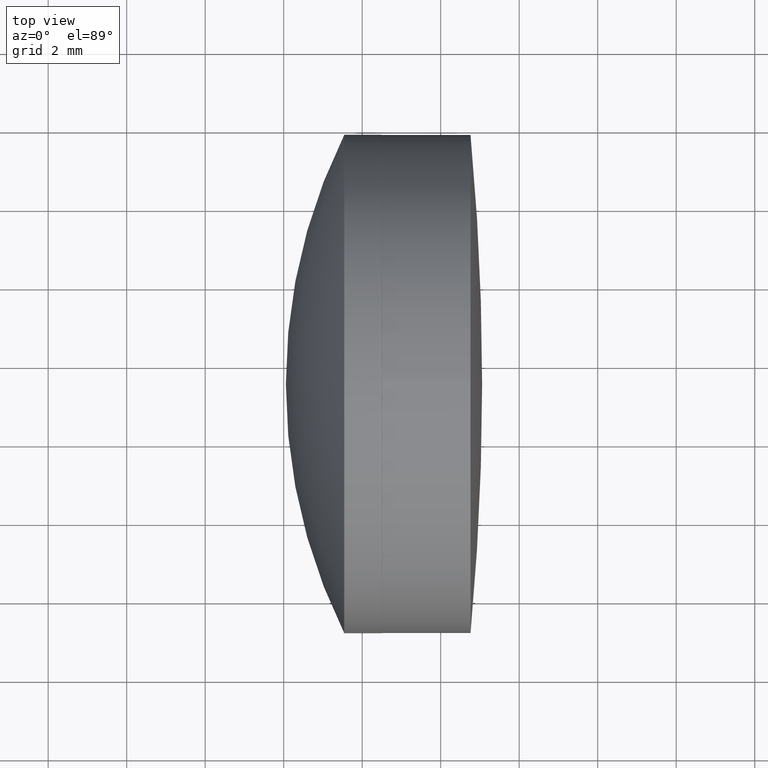
[diagram: clean part render]
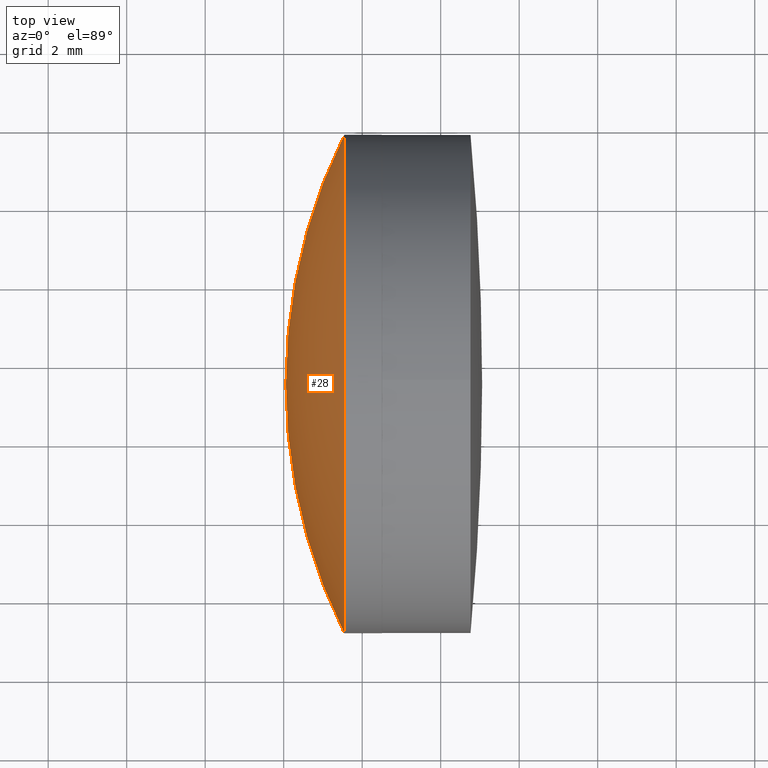
[diagram: same view with one face highlighted and labeled with its STEP entity id]
A machine part, top view. The second image highlights one B-rep face of the part: STEP entity #28.
In plain terms, the highlighted spherical surface has radius 14.29 mm.
Its self-contained STEP definition (entity closure, byte-faithful):
#28 = ADVANCED_FACE ( 'NONE', ( #581 ), #125, .T. ) ;
#34 = CIRCLE ( 'NONE', #84, 14.28999999999999027 ) ;
#40 = DIRECTION ( 'NONE',  ( 1.000000000000000000, 0.000000000000000000, 0.000000000000000000 ) ) ;
#84 = AXIS2_PLACEMENT_3D ( 'NONE', #287, #482, #40 ) ;
#92 = CARTESIAN_POINT ( 'NONE',  ( 12.28999999999998849, 0.000000000000000000, 0.000000000000000000 ) ) ;
#123 = DIRECTION ( 'NONE',  ( 0.000000000000000000, 0.000000000000000000, -1.000000000000000000 ) ) ;
#125 = SPHERICAL_SURFACE ( 'NONE', #532, 14.28999999999999027 ) ;
#132 = VERTEX_POINT ( 'NONE', #526 ) ;
#180 = EDGE_CURVE ( 'NONE', #410, #132, #34, .T. ) ;
#182 = CARTESIAN_POINT ( 'NONE',  ( 12.28999999999998849, 0.000000000000000000, 0.000000000000000000 ) ) ;
#212 = ORIENTED_EDGE ( 'NONE', *, *, #439, .T. ) ;
#236 = EDGE_CURVE ( 'NONE', #453, #132, #642, .T. ) ;
#244 = DIRECTION ( 'NONE',  ( 3.081136046910056722E-32, 1.224646799147353207E-16, -1.000000000000000000 ) ) ;
#285 = ORIENTED_EDGE ( 'NONE', *, *, #180, .T. ) ;
#287 = CARTESIAN_POINT ( 'NONE',  ( 12.28999999999998849, 0.000000000000000000, 0.000000000000000000 ) ) ;
#326 = DIRECTION ( 'NONE',  ( -1.000000000000000000, 2.515938513092316790E-16, -0.000000000000000000 ) ) ;
#365 = ORIENTED_EDGE ( 'NONE', *, *, #236, .F. ) ;
#375 = DIRECTION ( 'NONE',  ( 2.427884501017226571E-16, 1.000000000000000000, 0.000000000000000000 ) ) ;
#380 = CARTESIAN_POINT ( 'NONE',  ( -0.5116248968636704086, -6.349999999999992539, -7.776507174585689205E-16 ) ) ;
#397 = AXIS2_PLACEMENT_3D ( 'NONE', #92, #244, #446 ) ;
#410 = VERTEX_POINT ( 'NONE', #479 ) ;
#436 = CIRCLE ( 'NONE', #635, 6.349999999999993427 ) ;
#439 = EDGE_CURVE ( 'NONE', #453, #410, #436, .T. ) ;
#446 = DIRECTION ( 'NONE',  ( 0.000000000000000000, 1.000000000000000000, 1.224646799147353207E-16 ) ) ;
#453 = VERTEX_POINT ( 'NONE', #380 ) ;
#471 = DIRECTION ( 'NONE',  ( -2.561107494060249109E-16, -1.000000000000000000, 0.000000000000000000 ) ) ;
#479 = CARTESIAN_POINT ( 'NONE',  ( -0.5116248968636670780, 6.350000000000022737, 0.000000000000000000 ) ) ;
#482 = DIRECTION ( 'NONE',  ( 0.000000000000000000, 0.000000000000000000, 1.000000000000000000 ) ) ;
#526 = CARTESIAN_POINT ( 'NONE',  ( -2.000000000000001776, 4.470286273199701274E-15, 0.000000000000000000 ) ) ;
#532 = AXIS2_PLACEMENT_3D ( 'NONE', #182, #123, #375 ) ;
#568 = CARTESIAN_POINT ( 'NONE',  ( -0.5116248968636686323, 2.675969348662028730E-14, 0.000000000000000000 ) ) ;
#581 = FACE_OUTER_BOUND ( 'NONE', #617, .T. ) ;
#617 = EDGE_LOOP ( 'NONE', ( #365, #212, #285 ) ) ;
#635 = AXIS2_PLACEMENT_3D ( 'NONE', #568, #326, #471 ) ;
#642 = CIRCLE ( 'NONE', #397, 14.28999999999999027 ) ;